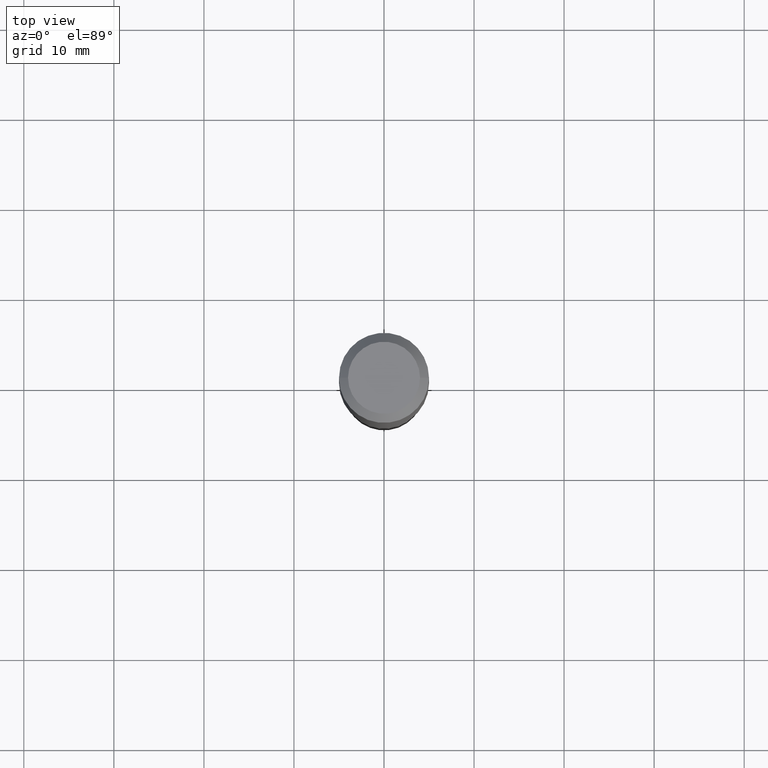
[diagram: clean part render]
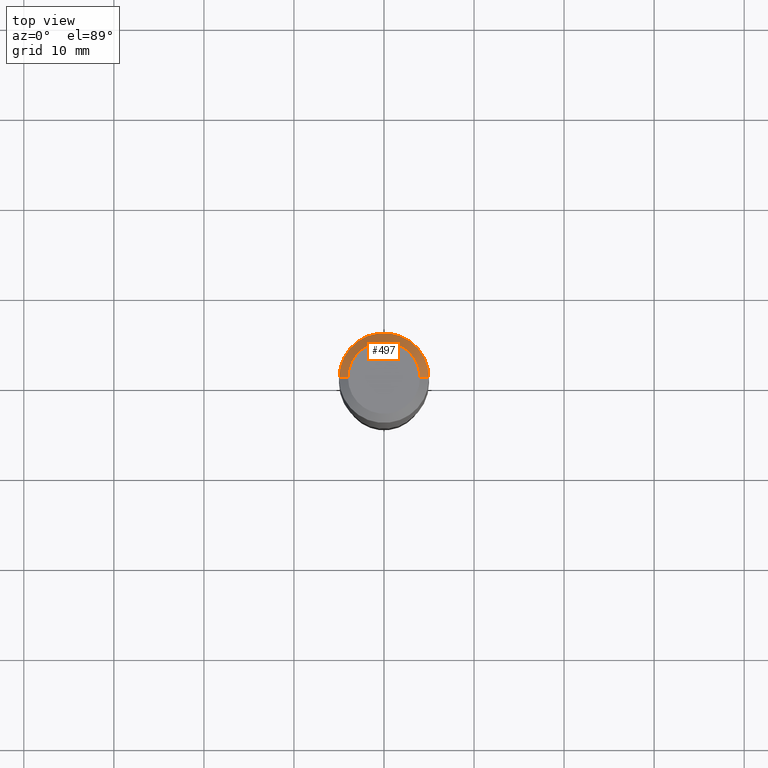
[diagram: same view with one face highlighted and labeled with its STEP entity id]
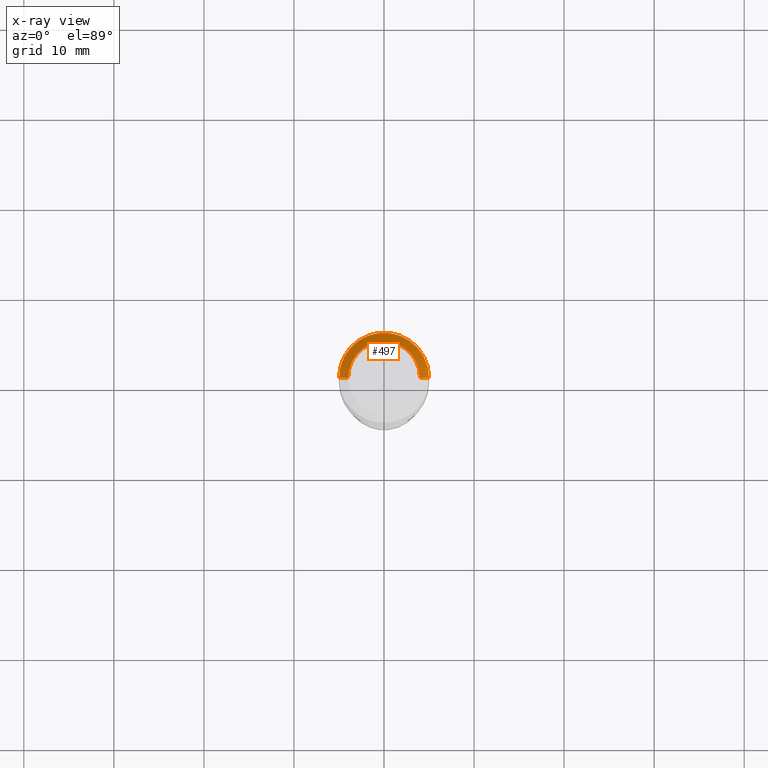
[diagram: x-ray of the same camera — body ghosted, the highlighted face saturated]
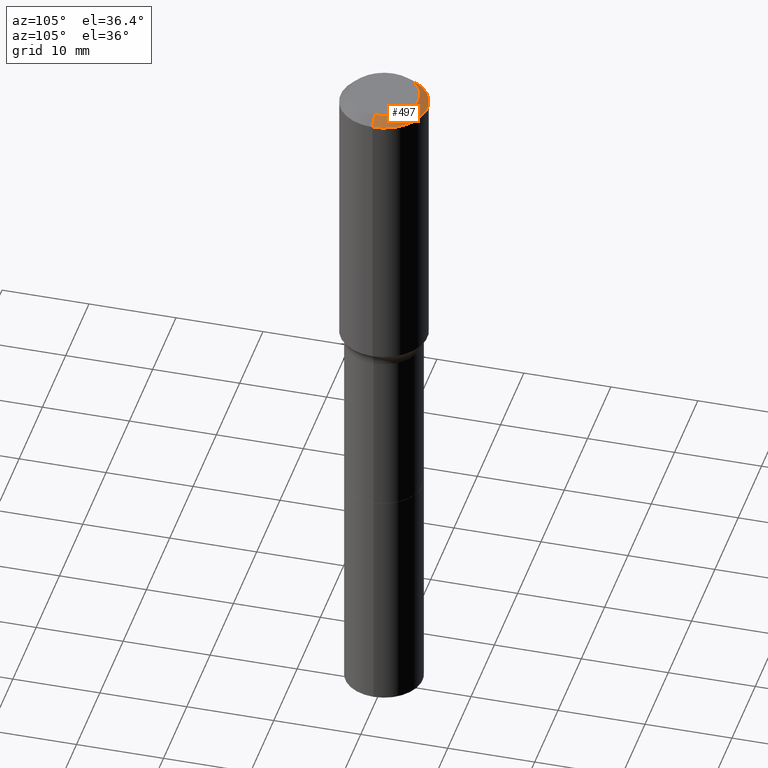
[diagram: same view with one face highlighted and labeled with its STEP entity id]
A machine part, top view. The second image highlights one B-rep face of the part: STEP entity #497.
The next image is the same camera in x-ray: the body ghosted, the highlighted face saturated — about 0% of this face is hidden behind the body in this view.
A second angle (auxiliary view) of the same face is appended — the face is thin or edge-on in the first view.
In plain terms, the highlighted conical surface has half-angle 45 deg.
Its self-contained STEP definition (entity closure, byte-faithful):
#8 = EDGE_CURVE ( 'NONE', #128, #358, #281, .T. ) ;
#9 = ORIENTED_EDGE ( 'NONE', *, *, #395, .F. ) ;
#25 = CARTESIAN_POINT ( 'NONE',  ( -0.1574800000000000089, 1.168406772637159815E-15, 3.855188123707939751E-18 ) ) ;
#66 = VERTEX_POINT ( 'NONE', #25 ) ;
#77 = CARTESIAN_POINT ( 'NONE',  ( -9.427742298522567634E-47, 1.346031739168368355E-32, 3.855188123715870730E-18 ) ) ;
#81 = CARTESIAN_POINT ( 'NONE',  ( 9.627810689950955906E-31, -1.374596203102556794E-16, -0.03937000000000030059 ) ) ;
#88 = DIRECTION ( 'NONE',  ( -2.445468806185136597E-29, 3.491481338843145583E-15, 1.000000000000000000 ) ) ;
#108 = DIRECTION ( 'NONE',  ( 1.000000000000000000, -6.982962677686265922E-15, 4.876223630392693006E-29 ) ) ;
#128 = VERTEX_POINT ( 'NONE', #231 ) ;
#139 = CARTESIAN_POINT ( 'NONE',  ( 0.1968500000000000527, -1.487948651171581996E-15, -0.03937000000000030059 ) ) ;
#171 = FACE_OUTER_BOUND ( 'NONE', #256, .T. ) ;
#181 = VECTOR ( 'NONE', #435, 39.37007874015748143 ) ;
#187 = AXIS2_PLACEMENT_3D ( 'NONE', #402, #517, #479 ) ;
#202 = DIRECTION ( 'NONE',  ( 1.000000000000000000, -6.982962677686266711E-15, 0.000000000000000000 ) ) ;
#212 = AXIS2_PLACEMENT_3D ( 'NONE', #77, #428, #108 ) ;
#222 = CIRCLE ( 'NONE', #212, 0.1574800000000000089 ) ;
#229 = AXIS2_PLACEMENT_3D ( 'NONE', #81, #88, #202 ) ;
#231 = CARTESIAN_POINT ( 'NONE',  ( 0.1574800000000000089, -1.284169937930321386E-15, 3.855188123724205385E-18 ) ) ;
#233 = VERTEX_POINT ( 'NONE', #235 ) ;
#235 = CARTESIAN_POINT ( 'NONE',  ( -0.1968500000000000527, -9.113311703585926457E-16, -0.03937000000000030059 ) ) ;
#243 = ORIENTED_EDGE ( 'NONE', *, *, #485, .T. ) ;
#247 = CARTESIAN_POINT ( 'NONE',  ( 0.1968500000000000527, -1.512055823412797583E-15, -0.03937000000000030059 ) ) ;
#256 = EDGE_LOOP ( 'NONE', ( #9, #432, #243, #401 ) ) ;
#277 = CIRCLE ( 'NONE', #229, 0.1968500000000000527 ) ;
#281 = LINE ( 'NONE', #139, #297 ) ;
#297 = VECTOR ( 'NONE', #459, 39.37007874015748143 ) ;
#357 = CARTESIAN_POINT ( 'NONE',  ( -0.1968500000000000527, 1.237136582792286422E-15, -0.03937000000000030059 ) ) ;
#358 = VERTEX_POINT ( 'NONE', #247 ) ;
#395 = EDGE_CURVE ( 'NONE', #128, #66, #222, .T. ) ;
#401 = ORIENTED_EDGE ( 'NONE', *, *, #468, .F. ) ;
#402 = CARTESIAN_POINT ( 'NONE',  ( 9.627810689950955906E-31, -1.374596203102556794E-16, -0.03937000000000030059 ) ) ;
#405 = LINE ( 'NONE', #357, #181 ) ;
#408 = CONICAL_SURFACE ( 'NONE', #187, 0.1968500000000000527, 0.7853981633974450594 ) ;
#428 = DIRECTION ( 'NONE',  ( -2.445468806185136597E-29, 3.491481338843145583E-15, 1.000000000000000000 ) ) ;
#432 = ORIENTED_EDGE ( 'NONE', *, *, #8, .T. ) ;
#435 = DIRECTION ( 'NONE',  ( -0.7071067811865452413, 2.468850131082233000E-15, -0.7071067811865497932 ) ) ;
#459 = DIRECTION ( 'NONE',  ( 0.7071067811865452413, -7.319954787623248157E-15, -0.7071067811865497932 ) ) ;
#468 = EDGE_CURVE ( 'NONE', #66, #233, #405, .T. ) ;
#479 = DIRECTION ( 'NONE',  ( -1.000000000000000000, 6.982962677686266711E-15, 0.000000000000000000 ) ) ;
#485 = EDGE_CURVE ( 'NONE', #358, #233, #277, .T. ) ;
#497 = ADVANCED_FACE ( 'NONE', ( #171 ), #408, .T. ) ;
#517 = DIRECTION ( 'NONE',  ( 2.445468806185136597E-29, -3.491481338843145583E-15, -1.000000000000000000 ) ) ;